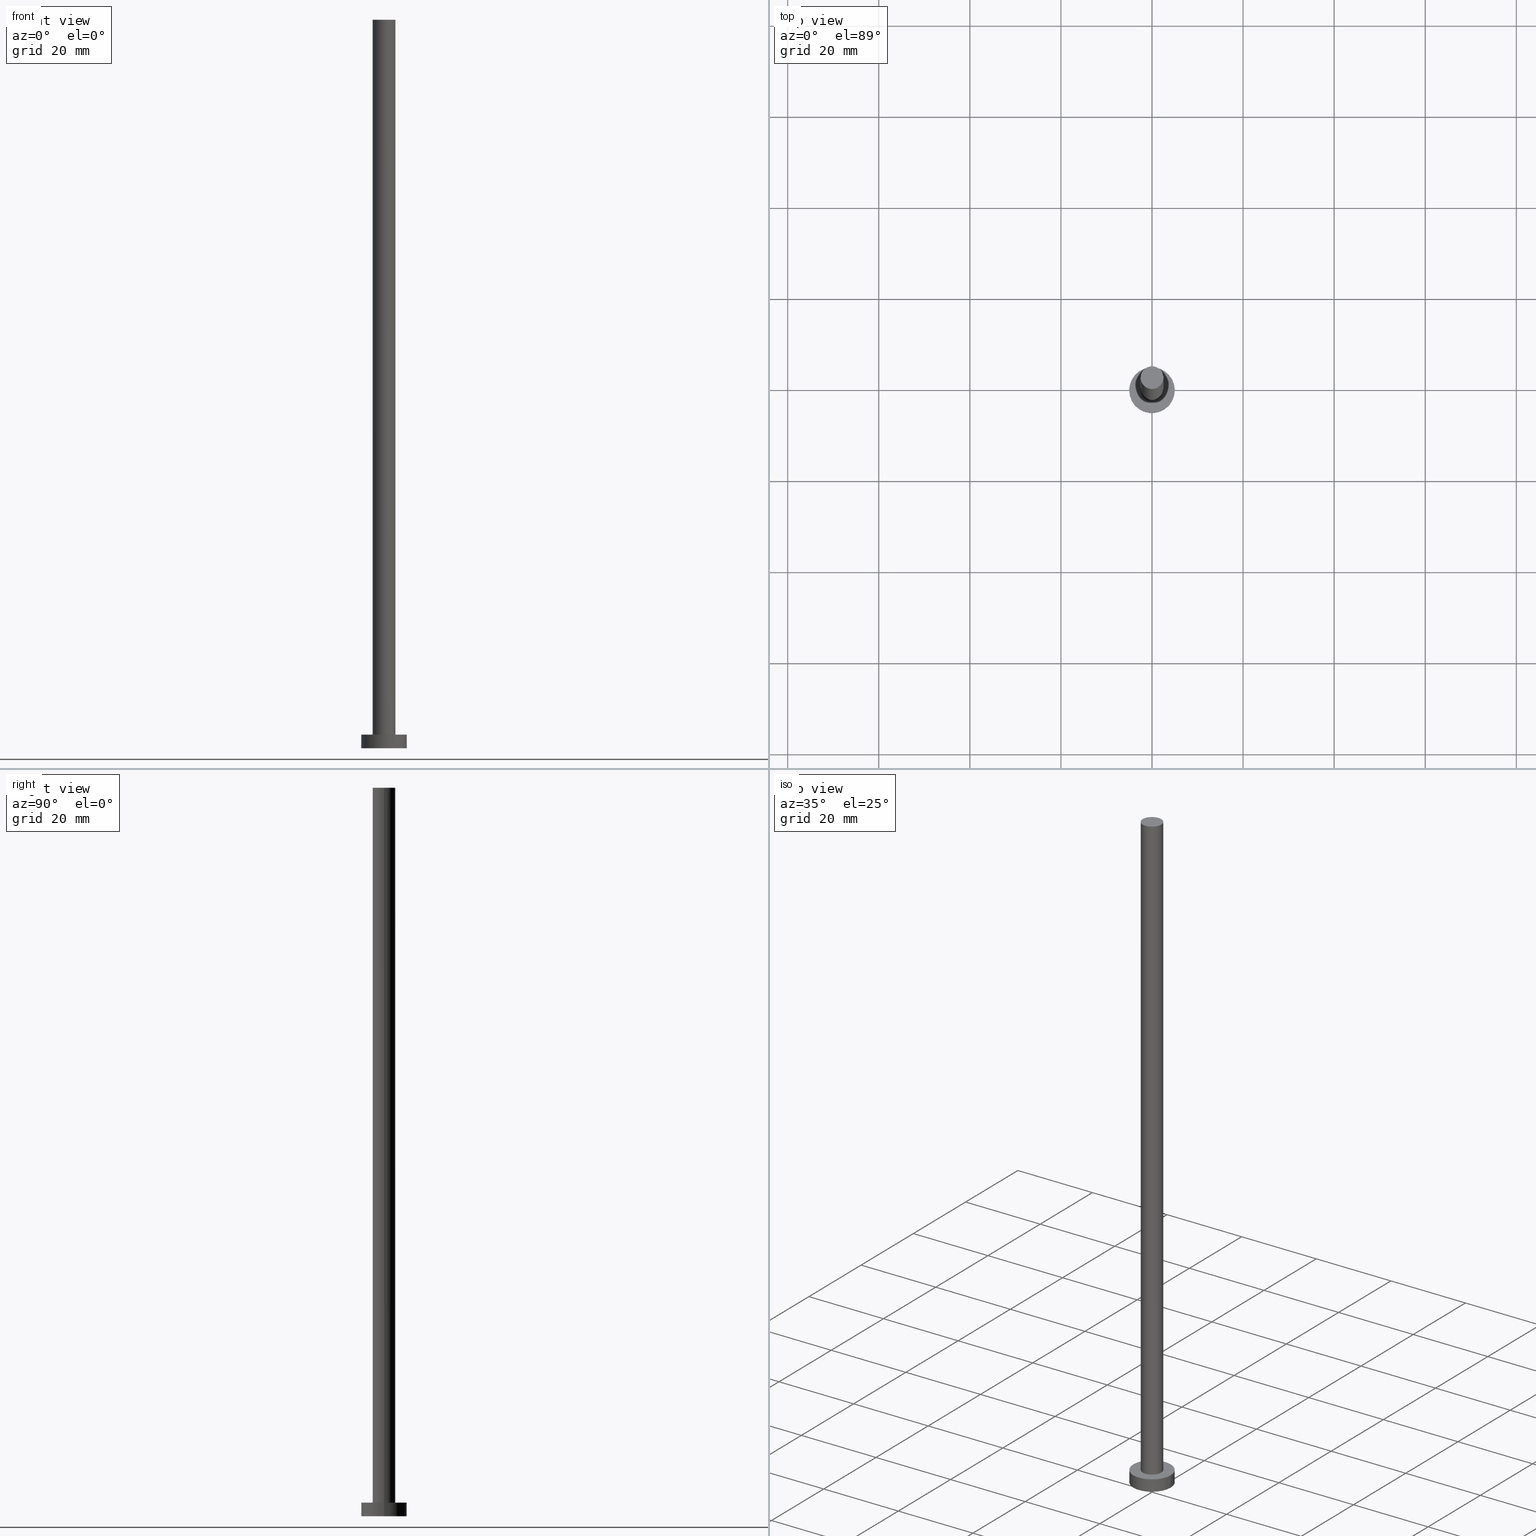
[diagram: canonical four-view strip — front | top / right | iso, engineering-drawing reading convention]
A machine part, canonical four-view strip (front | top / right | iso — engineering-drawing reading convention). The complete STEP part file that produces these views, byte-faithful:
ISO-10303-21;
HEADER;
FILE_DESCRIPTION (( 'STEP AP203' ),
    '1' );
FILE_NAME ('4041.STEP',
    '2023-02-13T13:26:37',
    ( '' ),
    ( '' ),
    'SwSTEP 2.0',
    'SolidWorks 2019',
    '' );
FILE_SCHEMA (( 'CONFIG_CONTROL_DESIGN' ));
ENDSEC;

DATA;
#1 = APPROVAL_DATE_TIME ( #65, #242 ) ;
#2 = DATE_TIME_ROLE ( 'creation_date' ) ;
#3 = AXIS2_PLACEMENT_3D ( 'NONE', #123, #32, #105 ) ;
#4 = PERSON_AND_ORGANIZATION ( #153, #130 ) ;
#5 = ADVANCED_BREP_SHAPE_REPRESENTATION ( '4041', ( #152, #167 ), #136 ) ;
#6 = LOCAL_TIME ( 14, 26, 37.00000000000000000, #213 ) ;
#7 = DIRECTION ( 'NONE',  ( -0.000000000000000000, -0.000000000000000000, -1.000000000000000000 ) ) ;
#8 = CARTESIAN_POINT ( 'NONE',  ( -2.500000000000000000, 0.000000000000000000, 160.0000000000000000 ) ) ;
#9 = FACE_OUTER_BOUND ( 'NONE', #98, .T. ) ;
#10 = ADVANCED_FACE ( 'NONE', ( #127 ), #203, .T. ) ;
#11 = LOCAL_TIME ( 14, 26, 37.00000000000000000, #92 ) ;
#12 = ORIENTED_EDGE ( 'NONE', *, *, #180, .T. ) ;
#13 = EDGE_CURVE ( 'NONE', #190, #47, #104, .T. ) ;
#14 = VERTEX_POINT ( 'NONE', #31 ) ;
#15 = AXIS2_PLACEMENT_3D ( 'NONE', #124, #160, #184 ) ;
#16 = PERSON_AND_ORGANIZATION_ROLE ( 'design_owner' ) ;
#17 = CIRCLE ( 'NONE', #142, 2.500000000000000000 ) ;
#18 = CC_DESIGN_DATE_AND_TIME_ASSIGNMENT ( #133, #2, ( #210 ) ) ;
#19 = ORIENTED_EDGE ( 'NONE', *, *, #48, .T. ) ;
#20 = PRODUCT_DEFINITION_SHAPE ( 'NONE', 'NONE',  #210 ) ;
#21 = VECTOR ( 'NONE', #179, 1000.000000000000000 ) ;
#22 = CC_DESIGN_PERSON_AND_ORGANIZATION_ASSIGNMENT ( #232, #44, ( #24 ) ) ;
#23 = VECTOR ( 'NONE', #7, 1000.000000000000000 ) ;
#24 = SECURITY_CLASSIFICATION ( '', '', #176 ) ;
#25 = CIRCLE ( 'NONE', #79, 2.500000000000000000 ) ;
#26 = APPROVAL_ROLE ( '' ) ;
#27 = CARTESIAN_POINT ( 'NONE',  ( 2.500000000000000000, 3.061616997868383141E-16, 160.0000000000000000 ) ) ;
#28 = ORIENTED_EDGE ( 'NONE', *, *, #112, .T. ) ;
#29 = VECTOR ( 'NONE', #189, 1000.000000000000000 ) ;
#30 = CYLINDRICAL_SURFACE ( 'NONE', #237, 5.000000000000000000 ) ;
#31 = CARTESIAN_POINT ( 'NONE',  ( -2.500000000000000000, 0.000000000000000000, 3.000000000000000000 ) ) ;
#32 = DIRECTION ( 'NONE',  ( 0.000000000000000000, 0.000000000000000000, 1.000000000000000000 ) ) ;
#33 = AXIS2_PLACEMENT_3D ( 'NONE', #77, #148, #224 ) ;
#34 = VERTEX_POINT ( 'NONE', #197 ) ;
#35 = LOCAL_TIME ( 14, 26, 37.00000000000000000, #67 ) ;
#36 = DIRECTION ( 'NONE',  ( 0.000000000000000000, 0.000000000000000000, 1.000000000000000000 ) ) ;
#37 = ORIENTED_EDGE ( 'NONE', *, *, #48, .F. ) ;
#38 =( NAMED_UNIT ( * ) PLANE_ANGLE_UNIT ( ) SI_UNIT ( $, .RADIAN. ) );
#39 = MECHANICAL_CONTEXT ( 'NONE', #151, 'mechanical' ) ;
#40 = VERTEX_POINT ( 'NONE', #86 ) ;
#41 = FACE_OUTER_BOUND ( 'NONE', #84, .T. ) ;
#42 = CARTESIAN_POINT ( 'NONE',  ( 5.000000000000000000, 6.123233995736766282E-16, 0.000000000000000000 ) ) ;
#43 = CALENDAR_DATE ( 2023, 13, 2 ) ;
#44 = PERSON_AND_ORGANIZATION_ROLE ( 'classification_officer' ) ;
#45 = APPROVAL_STATUS ( 'not_yet_approved' ) ;
#46 = DATE_AND_TIME ( #236, #6 ) ;
#47 = VERTEX_POINT ( 'NONE', #248 ) ;
#48 = EDGE_CURVE ( 'NONE', #252, #47, #239, .T. ) ;
#49 = CARTESIAN_POINT ( 'NONE',  ( 0.000000000000000000, 0.000000000000000000, 160.0000000000000000 ) ) ;
#50 = ADVANCED_FACE ( 'NONE', ( #215 ), #187, .T. ) ;
#51 = PLANE ( 'NONE',  #175 ) ;
#52 = CIRCLE ( 'NONE', #221, 2.500000000000000000 ) ;
#53 = ORIENTED_EDGE ( 'NONE', *, *, #74, .F. ) ;
#54 = AXIS2_PLACEMENT_3D ( 'NONE', #115, #128, #191 ) ;
#55 = EDGE_CURVE ( 'NONE', #205, #252, #199, .T. ) ;
#56 = LINE ( 'NONE', #8, #23 ) ;
#57 = ORIENTED_EDGE ( 'NONE', *, *, #13, .F. ) ;
#58 = DIRECTION ( 'NONE',  ( 0.000000000000000000, 0.000000000000000000, 1.000000000000000000 ) ) ;
#59 = EDGE_LOOP ( 'NONE', ( #250, #110 ) ) ;
#60 =( NAMED_UNIT ( * ) SI_UNIT ( $, .STERADIAN. ) SOLID_ANGLE_UNIT ( ) );
#61 = EDGE_LOOP ( 'NONE', ( #240, #164, #120, #201 ) ) ;
#62 = PLANE ( 'NONE',  #96 ) ;
#63 = DIRECTION ( 'NONE',  ( 0.000000000000000000, 0.000000000000000000, 1.000000000000000000 ) ) ;
#64 = CIRCLE ( 'NONE', #54, 2.500000000000000000 ) ;
#65 = DATE_AND_TIME ( #174, #11 ) ;
#66 = CC_DESIGN_PERSON_AND_ORGANIZATION_ASSIGNMENT ( #255, #132, ( #210 ) ) ;
#67 = COORDINATED_UNIVERSAL_TIME_OFFSET ( 1, 0, .AHEAD. ) ;
#68 = CALENDAR_DATE ( 2023, 13, 2 ) ;
#69 = CC_DESIGN_PERSON_AND_ORGANIZATION_ASSIGNMENT ( #4, #134, ( #228 ) ) ;
#70 = CARTESIAN_POINT ( 'NONE',  ( 0.000000000000000000, 0.000000000000000000, 3.000000000000000000 ) ) ;
#71 = CARTESIAN_POINT ( 'NONE',  ( 0.000000000000000000, 0.000000000000000000, 160.0000000000000000 ) ) ;
#72 = DIRECTION ( 'NONE',  ( 1.000000000000000000, 0.000000000000000000, 0.000000000000000000 ) ) ;
#73 = APPLICATION_PROTOCOL_DEFINITION ( 'international standard', 'config_control_design', 1994, #151 ) ;
#74 = EDGE_CURVE ( 'NONE', #40, #14, #52, .T. ) ;
#75 = UNCERTAINTY_MEASURE_WITH_UNIT (LENGTH_MEASURE( 1.000000000000000082E-05 ), #78, 'distance_accuracy_value', 'NONE');
#76 = LINE ( 'NONE', #131, #29 ) ;
#77 = CARTESIAN_POINT ( 'NONE',  ( 0.000000000000000000, 0.000000000000000000, 160.0000000000000000 ) ) ;
#78 =( LENGTH_UNIT ( ) NAMED_UNIT ( * ) SI_UNIT ( .MILLI., .METRE. ) );
#79 = AXIS2_PLACEMENT_3D ( 'NONE', #253, #63, #150 ) ;
#80 = APPROVAL_ROLE ( '' ) ;
#81 = DATE_TIME_ROLE ( 'classification_date' ) ;
#82 = CC_DESIGN_APPROVAL ( #169, ( #210 ) ) ;
#83 = CALENDAR_DATE ( 2023, 13, 2 ) ;
#84 = EDGE_LOOP ( 'NONE', ( #170, #57 ) ) ;
#85 = DIRECTION ( 'NONE',  ( 1.000000000000000000, 0.000000000000000000, 0.000000000000000000 ) ) ;
#86 = CARTESIAN_POINT ( 'NONE',  ( 2.500000000000000000, 3.061616997868383141E-16, 3.000000000000000000 ) ) ;
#87 = APPROVAL_PERSON_ORGANIZATION ( #234, #169, #26 ) ;
#88 = DIRECTION ( 'NONE',  ( -0.000000000000000000, -0.000000000000000000, -1.000000000000000000 ) ) ;
#89 = ADVANCED_FACE ( 'NONE', ( #138 ), #51, .T. ) ;
#90 = ADVANCED_FACE ( 'NONE', ( #163 ), #30, .T. ) ;
#91 = DESIGN_CONTEXT ( 'detailed design', #233, 'design' ) ;
#92 = COORDINATED_UNIVERSAL_TIME_OFFSET ( 1, 0, .AHEAD. ) ;
#93 = CC_DESIGN_PERSON_AND_ORGANIZATION_ASSIGNMENT ( #111, #16, ( #171 ) ) ;
#94 = ADVANCED_FACE ( 'NONE', ( #9 ), #168, .T. ) ;
#95 = VECTOR ( 'NONE', #88, 1000.000000000000000 ) ;
#96 = AXIS2_PLACEMENT_3D ( 'NONE', #251, #116, #172 ) ;
#97 = APPROVAL_DATE_TIME ( #230, #169 ) ;
#98 = EDGE_LOOP ( 'NONE', ( #113, #216, #19, #162 ) ) ;
#99 = AXIS2_PLACEMENT_3D ( 'NONE', #198, #101, #125 ) ;
#100 = CARTESIAN_POINT ( 'NONE',  ( 5.000000000000000000, 6.123233995736766282E-16, 3.000000000000000000 ) ) ;
#101 = DIRECTION ( 'NONE',  ( -0.000000000000000000, -0.000000000000000000, -1.000000000000000000 ) ) ;
#102 = CARTESIAN_POINT ( 'NONE',  ( 0.000000000000000000, 0.000000000000000000, 3.000000000000000000 ) ) ;
#103 = VERTEX_POINT ( 'NONE', #27 ) ;
#104 = CIRCLE ( 'NONE', #3, 5.000000000000000000 ) ;
#105 = DIRECTION ( 'NONE',  ( 1.000000000000000000, 0.000000000000000000, 0.000000000000000000 ) ) ;
#106 = EDGE_LOOP ( 'NONE', ( #247, #28, #146, #37 ) ) ;
#107 = EDGE_CURVE ( 'NONE', #47, #190, #244, .T. ) ;
#108 = DIRECTION ( 'NONE',  ( 1.000000000000000000, 0.000000000000000000, 0.000000000000000000 ) ) ;
#109 = EDGE_LOOP ( 'NONE', ( #12, #137 ) ) ;
#110 = ORIENTED_EDGE ( 'NONE', *, *, #55, .T. ) ;
#111 = PERSON_AND_ORGANIZATION ( #153, #130 ) ;
#112 = EDGE_CURVE ( 'NONE', #205, #190, #121, .T. ) ;
#113 = ORIENTED_EDGE ( 'NONE', *, *, #112, .F. ) ;
#114 = CARTESIAN_POINT ( 'NONE',  ( 0.000000000000000000, 0.000000000000000000, 0.000000000000000000 ) ) ;
#115 = CARTESIAN_POINT ( 'NONE',  ( 0.000000000000000000, 0.000000000000000000, 160.0000000000000000 ) ) ;
#116 = DIRECTION ( 'NONE',  ( 0.000000000000000000, 0.000000000000000000, 1.000000000000000000 ) ) ;
#117 = PERSON_AND_ORGANIZATION_ROLE ( 'design_supplier' ) ;
#118 = COORDINATED_UNIVERSAL_TIME_OFFSET ( 1, 0, .AHEAD. ) ;
#119 = AXIS2_PLACEMENT_3D ( 'NONE', #145, #58, #200 ) ;
#120 = ORIENTED_EDGE ( 'NONE', *, *, #139, .T. ) ;
#121 = LINE ( 'NONE', #100, #21 ) ;
#122 = CC_DESIGN_PERSON_AND_ORGANIZATION_ASSIGNMENT ( #195, #117, ( #228 ) ) ;
#123 = CARTESIAN_POINT ( 'NONE',  ( 0.000000000000000000, 0.000000000000000000, 0.000000000000000000 ) ) ;
#124 = CARTESIAN_POINT ( 'NONE',  ( 0.000000000000000000, 0.000000000000000000, 160.0000000000000000 ) ) ;
#125 = DIRECTION ( 'NONE',  ( -1.000000000000000000, 0.000000000000000000, 0.000000000000000000 ) ) ;
#126 = ORIENTED_EDGE ( 'NONE', *, *, #143, .F. ) ;
#127 = FACE_OUTER_BOUND ( 'NONE', #238, .T. ) ;
#128 = DIRECTION ( 'NONE',  ( 0.000000000000000000, 0.000000000000000000, 1.000000000000000000 ) ) ;
#129 = AXIS2_PLACEMENT_3D ( 'NONE', #114, #227, #147 ) ;
#130 = ORGANIZATION ( 'NEUR�EN�', 'NEUR�EN�', '' ) ;
#131 = CARTESIAN_POINT ( 'NONE',  ( 2.500000000000000000, 3.061616997868383141E-16, 160.0000000000000000 ) ) ;
#132 = PERSON_AND_ORGANIZATION_ROLE ( 'creator' ) ;
#133 = DATE_AND_TIME ( #83, #35 ) ;
#134 = PERSON_AND_ORGANIZATION_ROLE ( 'creator' ) ;
#135 = DATE_AND_TIME ( #43, #207 ) ;
#136 =( GEOMETRIC_REPRESENTATION_CONTEXT ( 3 ) GLOBAL_UNCERTAINTY_ASSIGNED_CONTEXT ( ( #75 ) ) GLOBAL_UNIT_ASSIGNED_CONTEXT ( ( #78, #38, #60 ) ) REPRESENTATION_CONTEXT ( 'NONE', 'WORKASPACE' ) );
#137 = ORIENTED_EDGE ( 'NONE', *, *, #143, .T. ) ;
#138 = FACE_OUTER_BOUND ( 'NONE', #109, .T. ) ;
#139 = EDGE_CURVE ( 'NONE', #34, #14, #56, .T. ) ;
#140 = CARTESIAN_POINT ( 'NONE',  ( -5.000000000000000000, 0.000000000000000000, 3.000000000000000000 ) ) ;
#141 = DIRECTION ( 'NONE',  ( 1.000000000000000000, 0.000000000000000000, 0.000000000000000000 ) ) ;
#142 = AXIS2_PLACEMENT_3D ( 'NONE', #71, #243, #72 ) ;
#143 = EDGE_CURVE ( 'NONE', #103, #34, #17, .T. ) ;
#144 = CARTESIAN_POINT ( 'NONE',  ( 0.000000000000000000, 0.000000000000000000, 3.000000000000000000 ) ) ;
#145 = CARTESIAN_POINT ( 'NONE',  ( 0.000000000000000000, 0.000000000000000000, 3.000000000000000000 ) ) ;
#146 = ORIENTED_EDGE ( 'NONE', *, *, #13, .T. ) ;
#147 = DIRECTION ( 'NONE',  ( 1.000000000000000000, 0.000000000000000000, -0.000000000000000000 ) ) ;
#148 = DIRECTION ( 'NONE',  ( -0.000000000000000000, -0.000000000000000000, -1.000000000000000000 ) ) ;
#149 = APPROVAL ( #154, 'NEUR�EN�' ) ;
#150 = DIRECTION ( 'NONE',  ( 1.000000000000000000, 0.000000000000000000, 0.000000000000000000 ) ) ;
#151 = APPLICATION_CONTEXT ( 'configuration controlled 3d designs of mechanical parts and assemblies' ) ;
#152 = MANIFOLD_SOLID_BREP ( 'P�idat vysunut�m3', #217 ) ;
#153 = PERSON ( 'NEUR�EN�', 'NEUR�EN�', 'NEUR�EN�', ('NEUR�EN�'), ('NEUR�EN�'), ('NEUR�EN�') ) ;
#154 = APPROVAL_STATUS ( 'not_yet_approved' ) ;
#155 = AXIS2_PLACEMENT_3D ( 'NONE', #102, #220, #141 ) ;
#156 = EDGE_CURVE ( 'NONE', #252, #205, #245, .T. ) ;
#157 = PERSON_AND_ORGANIZATION ( #153, #130 ) ;
#158 = APPROVAL_ROLE ( '' ) ;
#159 = ORIENTED_EDGE ( 'NONE', *, *, #74, .T. ) ;
#160 = DIRECTION ( 'NONE',  ( -0.000000000000000000, -0.000000000000000000, -1.000000000000000000 ) ) ;
#161 = CC_DESIGN_APPROVAL ( #149, ( #24 ) ) ;
#162 = ORIENTED_EDGE ( 'NONE', *, *, #107, .T. ) ;
#163 = FACE_OUTER_BOUND ( 'NONE', #106, .T. ) ;
#164 = ORIENTED_EDGE ( 'NONE', *, *, #180, .F. ) ;
#165 = AXIS2_PLACEMENT_3D ( 'NONE', #166, #241, #85 ) ;
#166 = CARTESIAN_POINT ( 'NONE',  ( 0.000000000000000000, 0.000000000000000000, 0.000000000000000000 ) ) ;
#167 = AXIS2_PLACEMENT_3D ( 'NONE', #202, #249, #222 ) ;
#168 = CYLINDRICAL_SURFACE ( 'NONE', #99, 5.000000000000000000 ) ;
#169 = APPROVAL ( #208, 'NEUR�EN�' ) ;
#170 = ORIENTED_EDGE ( 'NONE', *, *, #107, .F. ) ;
#171 = PRODUCT ( '4041', '4041', '', ( #39 ) ) ;
#172 = DIRECTION ( 'NONE',  ( 1.000000000000000000, 0.000000000000000000, -0.000000000000000000 ) ) ;
#173 = SHAPE_DEFINITION_REPRESENTATION ( #20, #5 ) ;
#174 = CALENDAR_DATE ( 2023, 13, 2 ) ;
#175 = AXIS2_PLACEMENT_3D ( 'NONE', #49, #214, #183 ) ;
#176 = SECURITY_CLASSIFICATION_LEVEL ( 'unclassified' ) ;
#177 = APPROVAL_PERSON_ORGANIZATION ( #178, #242, #80 ) ;
#178 = PERSON_AND_ORGANIZATION ( #153, #130 ) ;
#179 = DIRECTION ( 'NONE',  ( -0.000000000000000000, -0.000000000000000000, -1.000000000000000000 ) ) ;
#180 = EDGE_CURVE ( 'NONE', #34, #103, #64, .T. ) ;
#181 = ORIENTED_EDGE ( 'NONE', *, *, #188, .F. ) ;
#182 = DIRECTION ( 'NONE',  ( -0.000000000000000000, -0.000000000000000000, -1.000000000000000000 ) ) ;
#183 = DIRECTION ( 'NONE',  ( 1.000000000000000000, 0.000000000000000000, -0.000000000000000000 ) ) ;
#184 = DIRECTION ( 'NONE',  ( -1.000000000000000000, 0.000000000000000000, 0.000000000000000000 ) ) ;
#185 = CC_DESIGN_APPROVAL ( #242, ( #228 ) ) ;
#186 = EDGE_LOOP ( 'NONE', ( #181, #53 ) ) ;
#187 = CYLINDRICAL_SURFACE ( 'NONE', #15, 2.500000000000000000 ) ;
#188 = EDGE_CURVE ( 'NONE', #14, #40, #25, .T. ) ;
#189 = DIRECTION ( 'NONE',  ( -0.000000000000000000, -0.000000000000000000, -1.000000000000000000 ) ) ;
#190 = VERTEX_POINT ( 'NONE', #42 ) ;
#191 = DIRECTION ( 'NONE',  ( 1.000000000000000000, 0.000000000000000000, 0.000000000000000000 ) ) ;
#192 = APPLICATION_PROTOCOL_DEFINITION ( 'international standard', 'config_control_design', 1994, #233 ) ;
#193 = APPROVAL_DATE_TIME ( #46, #149 ) ;
#194 = CC_DESIGN_DATE_AND_TIME_ASSIGNMENT ( #135, #81, ( #24 ) ) ;
#195 = PERSON_AND_ORGANIZATION ( #153, #130 ) ;
#196 = ORIENTED_EDGE ( 'NONE', *, *, #139, .F. ) ;
#197 = CARTESIAN_POINT ( 'NONE',  ( -2.500000000000000000, 0.000000000000000000, 160.0000000000000000 ) ) ;
#198 = CARTESIAN_POINT ( 'NONE',  ( 0.000000000000000000, 0.000000000000000000, 3.000000000000000000 ) ) ;
#199 = CIRCLE ( 'NONE', #155, 5.000000000000000000 ) ;
#200 = DIRECTION ( 'NONE',  ( 1.000000000000000000, 0.000000000000000000, 0.000000000000000000 ) ) ;
#201 = ORIENTED_EDGE ( 'NONE', *, *, #188, .T. ) ;
#202 = CARTESIAN_POINT ( 'NONE',  ( 0.000000000000000000, 0.000000000000000000, 0.000000000000000000 ) ) ;
#203 = CYLINDRICAL_SURFACE ( 'NONE', #33, 2.500000000000000000 ) ;
#204 = CARTESIAN_POINT ( 'NONE',  ( 5.000000000000000000, 6.123233995736766282E-16, 3.000000000000000000 ) ) ;
#205 = VERTEX_POINT ( 'NONE', #204 ) ;
#206 = CARTESIAN_POINT ( 'NONE',  ( -5.000000000000000000, 0.000000000000000000, 3.000000000000000000 ) ) ;
#207 = LOCAL_TIME ( 14, 26, 37.00000000000000000, #118 ) ;
#208 = APPROVAL_STATUS ( 'not_yet_approved' ) ;
#209 = LOCAL_TIME ( 14, 26, 37.00000000000000000, #211 ) ;
#210 = PRODUCT_DEFINITION ( 'NEZN�M�', '', #228, #91 ) ;
#211 = COORDINATED_UNIVERSAL_TIME_OFFSET ( 1, 0, .AHEAD. ) ;
#212 = ADVANCED_FACE ( 'NONE', ( #41 ), #254, .F. ) ;
#213 = COORDINATED_UNIVERSAL_TIME_OFFSET ( 1, 0, .AHEAD. ) ;
#214 = DIRECTION ( 'NONE',  ( 0.000000000000000000, 0.000000000000000000, 1.000000000000000000 ) ) ;
#215 = FACE_OUTER_BOUND ( 'NONE', #61, .T. ) ;
#216 = ORIENTED_EDGE ( 'NONE', *, *, #156, .F. ) ;
#217 = CLOSED_SHELL ( 'NONE', ( #10, #90, #94, #235, #212, #50, #89 ) ) ;
#218 = CC_DESIGN_SECURITY_CLASSIFICATION ( #24, ( #228 ) ) ;
#219 = DIRECTION ( 'NONE',  ( -1.000000000000000000, 0.000000000000000000, 0.000000000000000000 ) ) ;
#220 = DIRECTION ( 'NONE',  ( 0.000000000000000000, 0.000000000000000000, 1.000000000000000000 ) ) ;
#221 = AXIS2_PLACEMENT_3D ( 'NONE', #70, #36, #108 ) ;
#222 = DIRECTION ( 'NONE',  ( 1.000000000000000000, 0.000000000000000000, 0.000000000000000000 ) ) ;
#223 = ORIENTED_EDGE ( 'NONE', *, *, #231, .T. ) ;
#224 = DIRECTION ( 'NONE',  ( -1.000000000000000000, 0.000000000000000000, 0.000000000000000000 ) ) ;
#225 = PRODUCT_RELATED_PRODUCT_CATEGORY ( 'detail', '', ( #171 ) ) ;
#226 = FACE_OUTER_BOUND ( 'NONE', #59, .T. ) ;
#227 = DIRECTION ( 'NONE',  ( 0.000000000000000000, 0.000000000000000000, 1.000000000000000000 ) ) ;
#228 = PRODUCT_DEFINITION_FORMATION_WITH_SPECIFIED_SOURCE ( 'LIBOVOLN�', '', #171, .NOT_KNOWN. ) ;
#229 = FACE_BOUND ( 'NONE', #186, .T. ) ;
#230 = DATE_AND_TIME ( #68, #209 ) ;
#231 = EDGE_CURVE ( 'NONE', #103, #40, #76, .T. ) ;
#232 = PERSON_AND_ORGANIZATION ( #153, #130 ) ;
#233 = APPLICATION_CONTEXT ( 'configuration controlled 3d designs of mechanical parts and assemblies' ) ;
#234 = PERSON_AND_ORGANIZATION ( #153, #130 ) ;
#235 = ADVANCED_FACE ( 'NONE', ( #229, #226 ), #62, .T. ) ;
#236 = CALENDAR_DATE ( 2023, 13, 2 ) ;
#237 = AXIS2_PLACEMENT_3D ( 'NONE', #144, #182, #219 ) ;
#238 = EDGE_LOOP ( 'NONE', ( #126, #223, #159, #196 ) ) ;
#239 = LINE ( 'NONE', #140, #95 ) ;
#240 = ORIENTED_EDGE ( 'NONE', *, *, #231, .F. ) ;
#241 = DIRECTION ( 'NONE',  ( 0.000000000000000000, 0.000000000000000000, 1.000000000000000000 ) ) ;
#242 = APPROVAL ( #45, 'NEUR�EN�' ) ;
#243 = DIRECTION ( 'NONE',  ( 0.000000000000000000, 0.000000000000000000, 1.000000000000000000 ) ) ;
#244 = CIRCLE ( 'NONE', #165, 5.000000000000000000 ) ;
#245 = CIRCLE ( 'NONE', #119, 5.000000000000000000 ) ;
#246 = APPROVAL_PERSON_ORGANIZATION ( #157, #149, #158 ) ;
#247 = ORIENTED_EDGE ( 'NONE', *, *, #55, .F. ) ;
#248 = CARTESIAN_POINT ( 'NONE',  ( -5.000000000000000000, 0.000000000000000000, 0.000000000000000000 ) ) ;
#249 = DIRECTION ( 'NONE',  ( 0.000000000000000000, 0.000000000000000000, 1.000000000000000000 ) ) ;
#250 = ORIENTED_EDGE ( 'NONE', *, *, #156, .T. ) ;
#251 = CARTESIAN_POINT ( 'NONE',  ( 0.000000000000000000, 0.000000000000000000, 3.000000000000000000 ) ) ;
#252 = VERTEX_POINT ( 'NONE', #206 ) ;
#253 = CARTESIAN_POINT ( 'NONE',  ( 0.000000000000000000, 0.000000000000000000, 3.000000000000000000 ) ) ;
#254 = PLANE ( 'NONE',  #129 ) ;
#255 = PERSON_AND_ORGANIZATION ( #153, #130 ) ;
ENDSEC;
END-ISO-10303-21;
